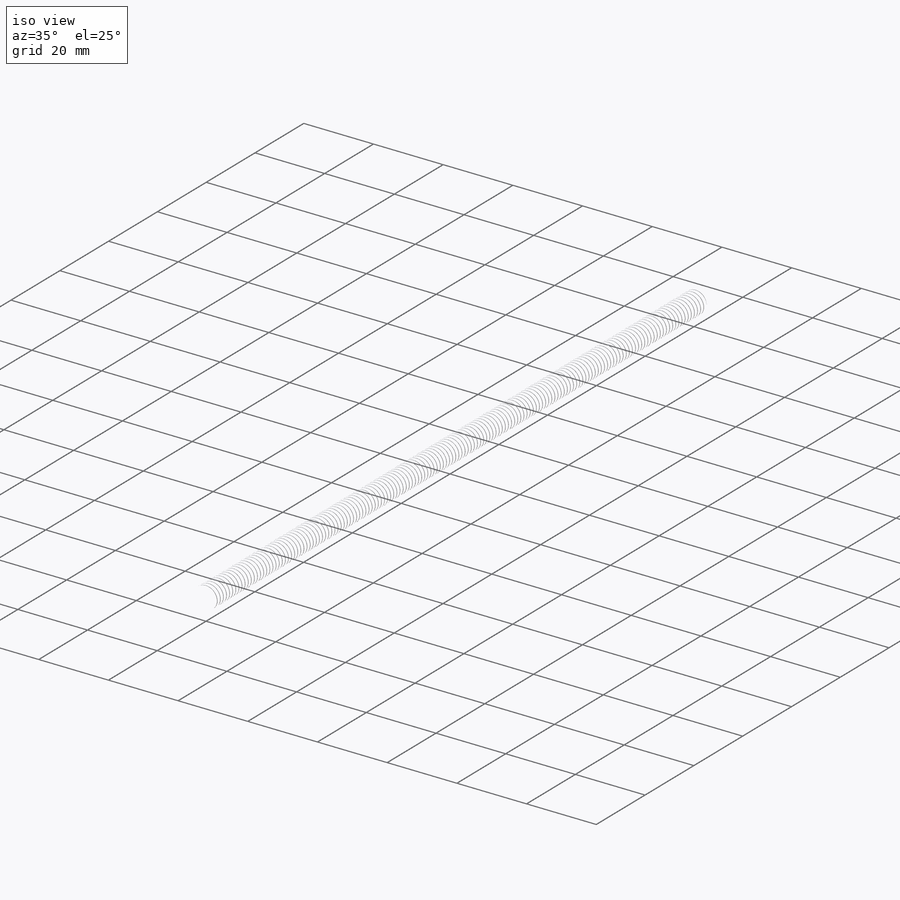
[diagram: iso view]
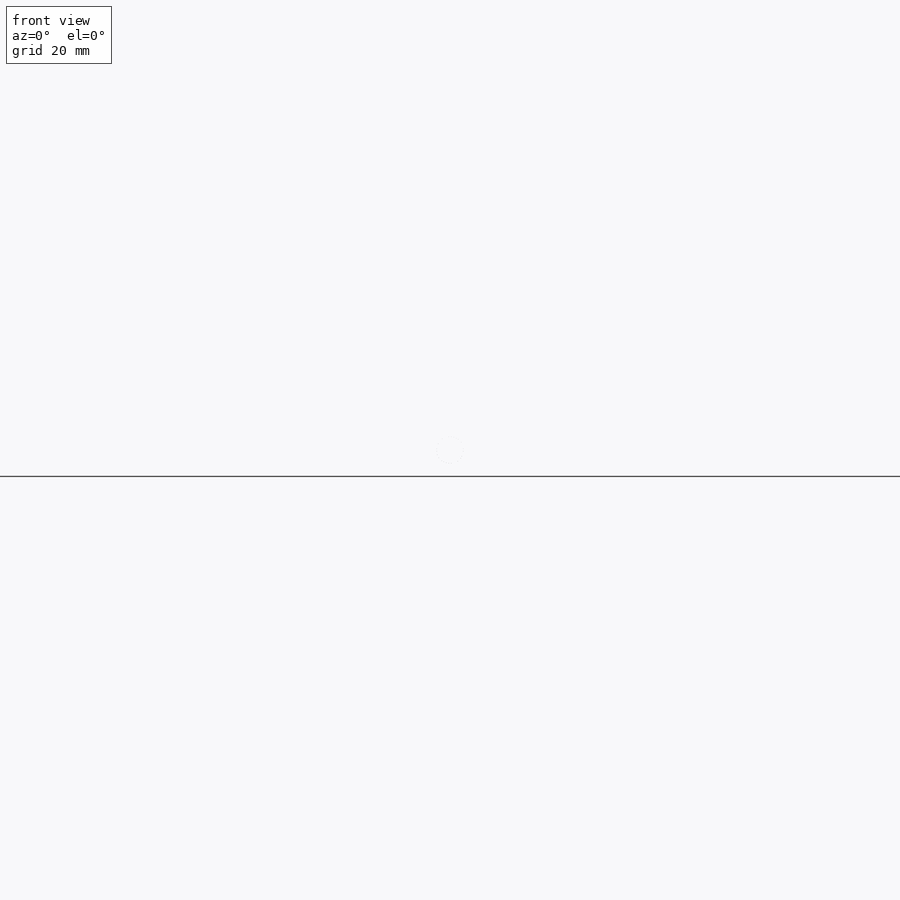
[diagram: front view]
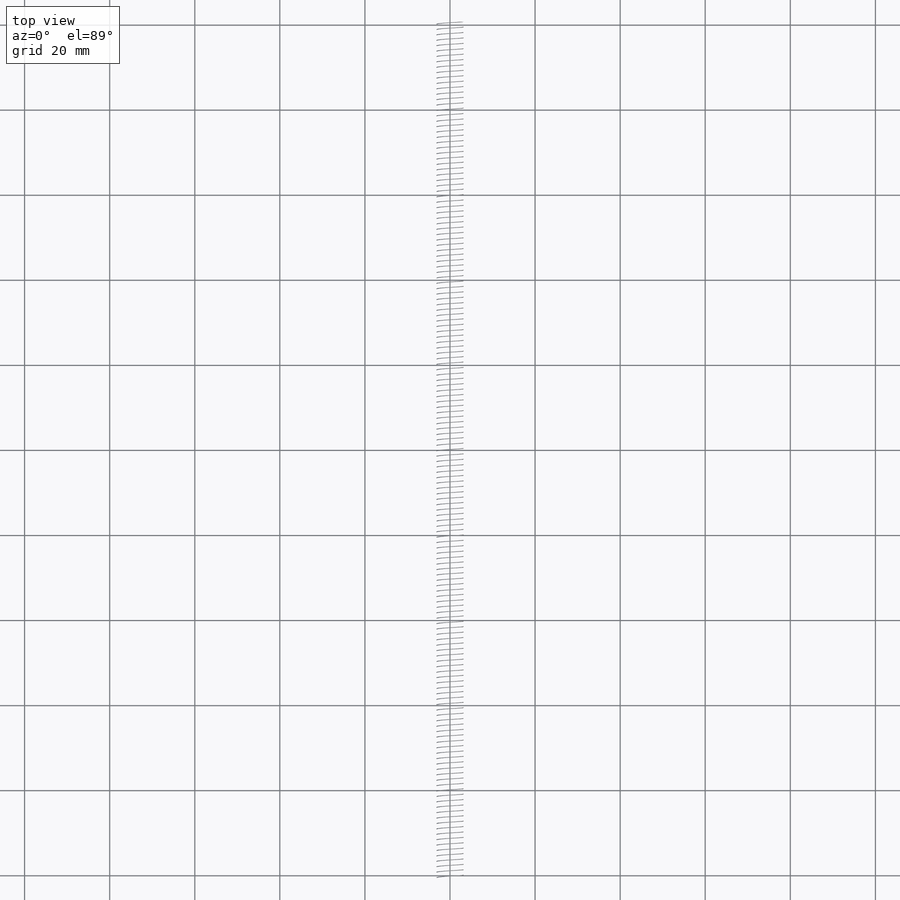
[diagram: top view]
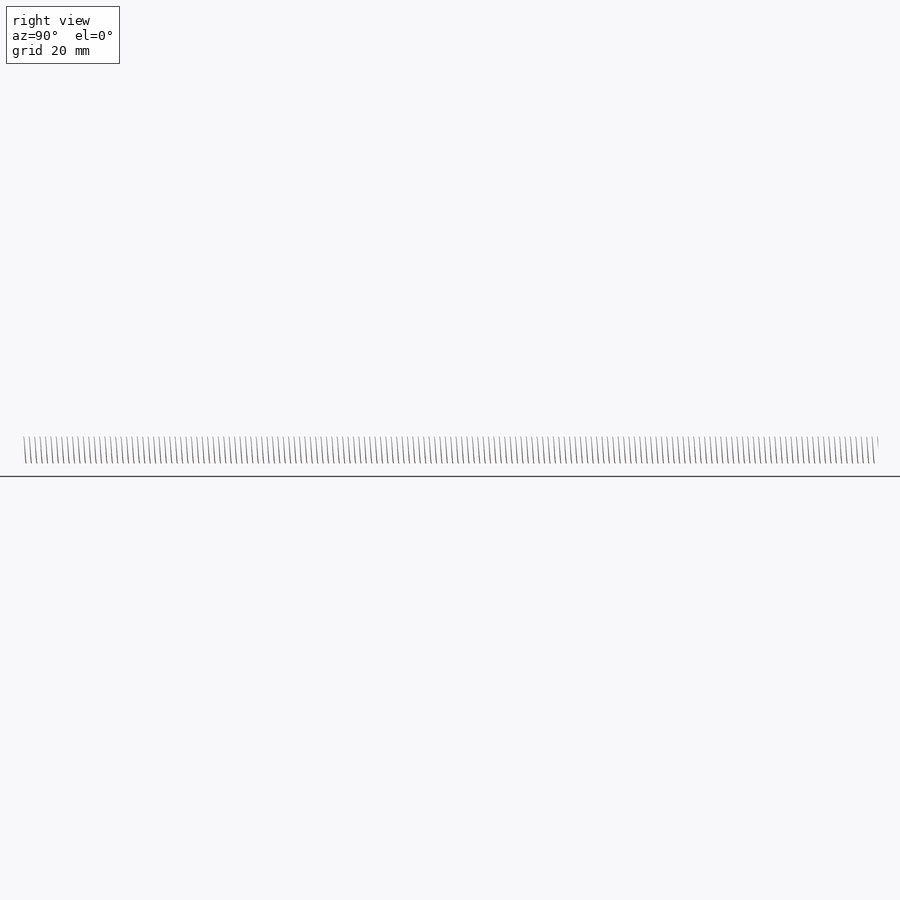
[diagram: right view]
SOLIDWORKS PART (.sldprt)
format: sldprt  version: not decoded by parser v0  size: 7,959,552 bytes
history: native  units: mm
features: sketch x4, material x1, extrude x1, chamfer x1, helix x1, sweep x1 (+14 scaffold rows collapsed)
feature tree (23):
  scaffold x14  (default folders/planes/origin — collapsed)
  material  "Plain Carbon Steel"
  sketch  "Sketch1"  dims[Diameter=6.35mm]
  extrude  "Boss-Extrude1"  Depth=203.2mm Length=203.2mm
  chamfer  "Chamfer1"  Distance=0.9525mm Angle=45deg
  sketch  "Sketch4"  dims[D1=0.0mm]
  helix  "Helix/Spiral1"  Pitch=204.47mm
  sketch  "Sketch5"  dims[c1.D1=~22.362017mm c2.D1=60.0deg c2.D2=~0.15875mm c2.D3=0.635mm c2.D4=0.254mm]
  sweep  "Cut-Sweep1"
  sketch  "Sketch6"  dims[D1=203.2mm D2=6.35mm D3=5.715mm D4=5.715mm]
decode coverage: 7 of 8 modeling features carry decoded parameters
note: ~ marks probable driven/reference dimensions
note: suppression state not decoded; provenance and decode notes live in map.json
